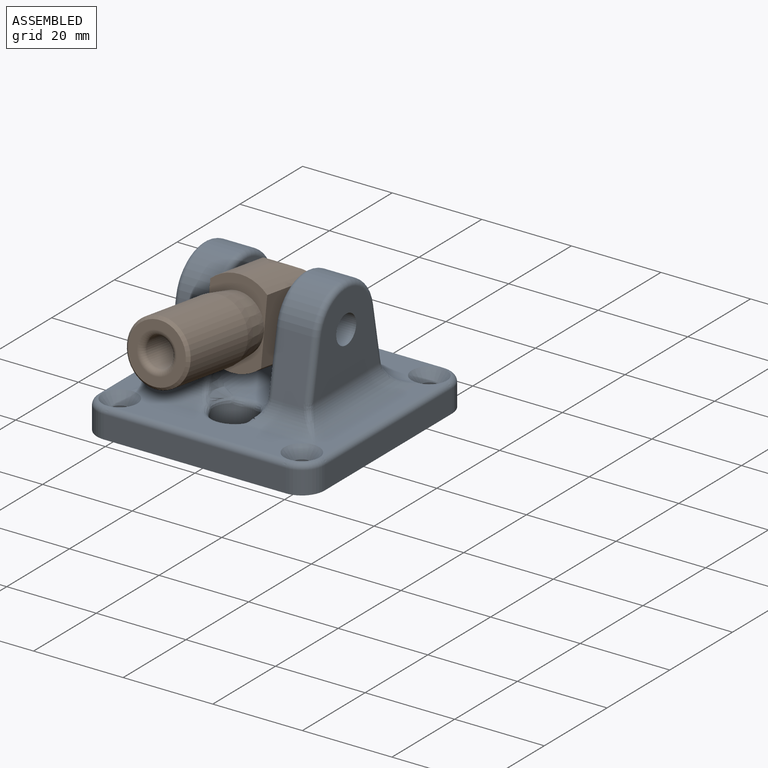
[diagram: assembled view]
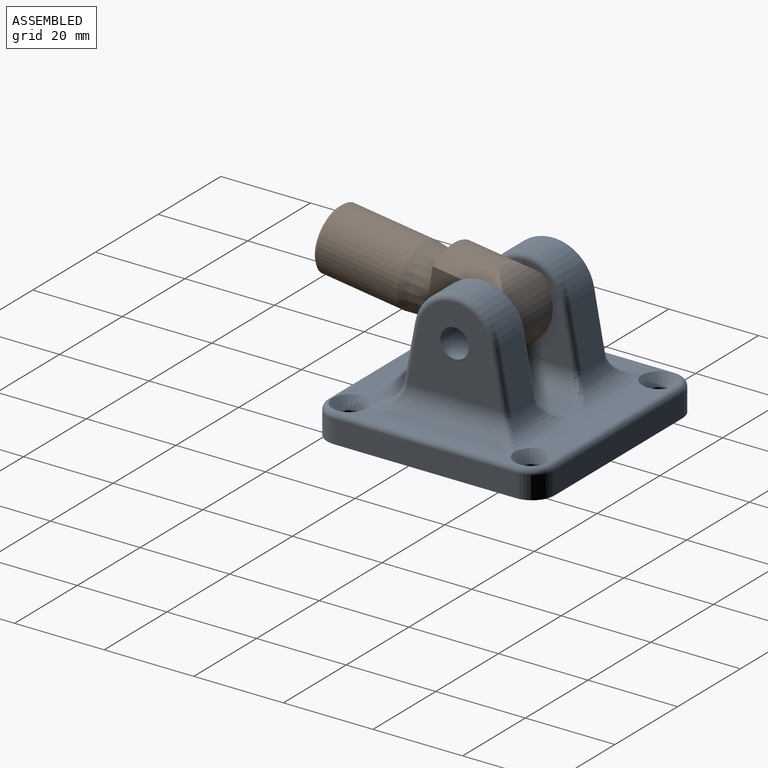
[diagram: assembled view, second angle]
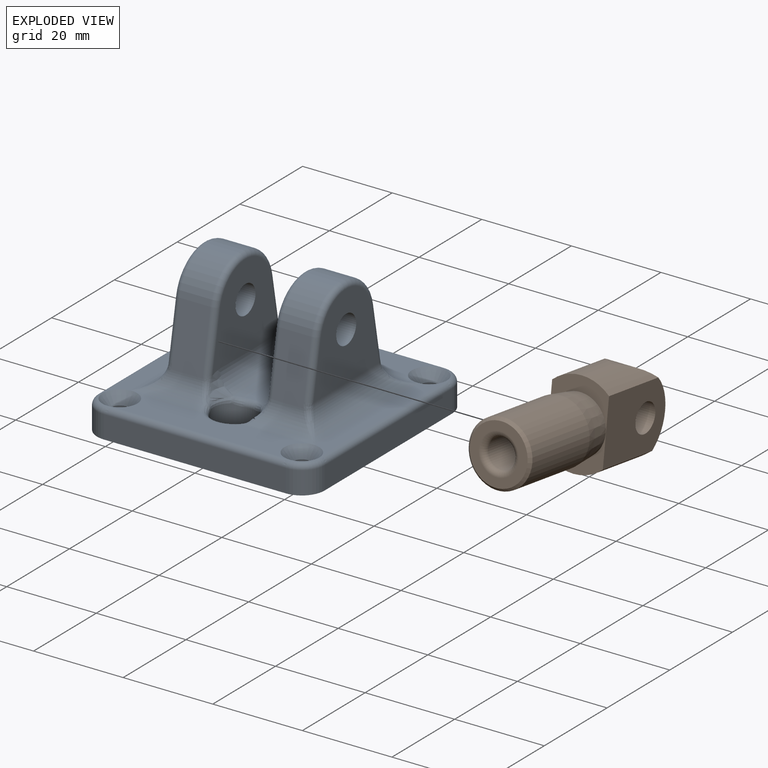
[diagram: exploded view]
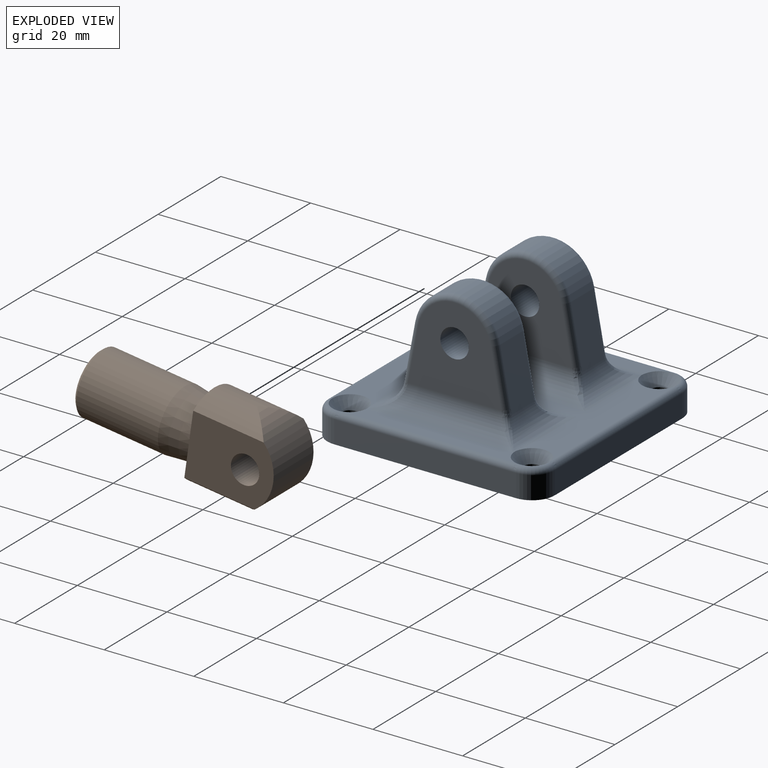
[diagram: exploded view, second angle]
ASSEMBLY  parts=2 mates=2
PART A: 100 faces, bbox 51.6x51.6x32.5 mm
  f0: plane 38.98x30.96mm, normal (0,0,1), area 313.1mm2, adj f23,f29,f30,f31,f35,f37,f45,f84
  f1: plane 38.98x3.05mm, normal (0,0,1), area 106mm2, adj f27,f29,f39,f79
  f2: plane 38.98x3.05mm, normal (0,0,1), area 106mm2, adj f23,f25,f33,f76
  f3: plane 20.89x19.05mm, normal (-1,0,0), area 279mm2, adj f14,f39,f88,f89,f90
  f4: plane 20.99x19.55mm, normal (1,0,0), area 279.4mm2, adj f14,f35,f36,f56,f57,f58
  f5: plane 20.99x19.55mm, normal (-1,0,0), area 279.4mm2, adj f13,f30,f32,f64,f65,f66
  f6: plane 20.89x19.05mm, normal (1,0,0), area 279mm2, adj f13,f33,f95,f96,f97
  f7: plane 38.98x7.22mm, normal (0,0,1), area 236.2mm2, adj f25,f27,f34,f38,f52,f71
  f8: plane 40.64x5.08mm, normal (0,1,0), area 206.5mm2, adj f12,f40,f43,f82,f84,f85
  f9: plane 40.64x5.08mm, normal (-1,0,0), area 206.5mm2, adj f12,f40,f41,f77,f79,f81
  f10: plane 40.64x5.08mm, normal (0,-1,0), area 206.5mm2, adj f12,f41,f42,f70,f71,f73
  f11: plane 40.64x5.08mm, normal (1,0,0), area 206.5mm2, adj f12,f42,f43,f74,f76,f78
  f12: plane 50.8x50.8mm, normal (0,0,-1), area 2441.9mm2, adj f8,f9,f10,f11,f21,f22,f24,f26
  f13: cylinder r=3.17mm len=9.53mm, axis (1,0,0), area 190mm2, adj f5,f6
  f14: cylinder r=3.17mm len=9.53mm, axis (1,0,0), area 190mm2, adj f3,f4
  f15: cylinder r=9.53mm len=18.72mm, axis (1,0,0), area 184.1mm2, adj f16,f19,f65,f96
  f16: plane 13.51x7.12mm, normal (0,-0.98,0.19), area 96.1mm2, adj f15,f34,f66,f67,f94,f95
  f17: plane 13.51x7.12mm, normal (0,-0.98,0.19), area 96.1mm2, adj f18,f38,f58,f59,f87,f88
  f18: cylinder r=9.53mm len=18.72mm, axis (1,0,0), area 184.1mm2, adj f17,f20,f57,f89
  f19: plane 13.51x7.21mm, normal (0,0.98,0.19), area 96.1mm2, adj f15,f31,f63,f64,f97,f98
  f20: plane 13.51x7.21mm, normal (0,0.98,0.19), area 96.1mm2, adj f18,f37,f55,f56,f90,f91
  f21: cylinder r=4.76mm len=9.53mm, axis (0,0,-1), area 161.1mm2, adj f12,f44,f45,f46,f47,f48,f49,f50
  f22: cylinder r=1.9mm len=4.05mm, axis (0,0,1), area 48.3mm2, adj f12,f23
  f23: cone r=1.9mm half-angle=41deg, axis (0,0,1), area 55.6mm2, adj f0,f2,f22,f31,f33,f78,f80,f82
  f24: cylinder r=1.9mm len=4.05mm, axis (0,0,1), area 48.3mm2, adj f12,f25
  f25: cone r=1.9mm half-angle=41deg, axis (0,0,1), area 55.6mm2, adj f2,f7,f24,f33,f34,f70,f72,f74
  f26: cylinder r=1.9mm len=4.05mm, axis (0,0,1), area 48.3mm2, adj f12,f27
  f27: cone r=1.9mm half-angle=41deg, axis (0,0,1), area 55.6mm2, adj f1,f7,f26,f38,f39,f73,f75,f77
  f28: cylinder r=1.9mm len=4.05mm, axis (0,0,1), area 48.3mm2, adj f12,f29
  f29: cone r=1.9mm half-angle=41deg, axis (0,0,1), area 55.6mm2, adj f0,f1,f28,f37,f39,f81,f83,f85
  f30: cylinder r=5.08mm len=25.06mm, axis (0,-1,0), area 166.3mm2, adj f0,f5,f32,f44,f62,f63
  f31: cylinder r=5.08mm len=19.05mm, axis (-1,0,0), area 93mm2, adj f0,f19,f23,f62,f99
  f32: bspline ~6.95x5.24mm, area 19mm2, adj f5,f30,f46,f48,f67,f68
  f33: cylinder r=5.08mm len=32.99mm, axis (0,1,0), area 205.1mm2, adj f2,f6,f23,f25,f93,f94,f98,f99
  f34: cylinder r=5.08mm len=16.13mm, axis (-1,0,0), area 81mm2, adj f7,f16,f25,f50,f68,f93
  f35: cylinder r=5.08mm len=25.06mm, axis (0,1,0), area 166.3mm2, adj f0,f4,f36,f47,f54,f55
  f36: bspline ~6.95x5.24mm, area 19mm2, adj f4,f35,f49,f51,f59,f60
  f37: cylinder r=5.08mm len=19.05mm, axis (-1,0,0), area 93mm2, adj f0,f20,f29,f54,f92
  f38: cylinder r=5.08mm len=16.13mm, axis (-1,0,0), area 81mm2, adj f7,f17,f27,f53,f60,f86
  f39: cylinder r=5.08mm len=32.99mm, axis (0,-1,0), area 205.1mm2, adj f1,f3,f27,f29,f86,f87,f91,f92
  f40: cylinder r=5.08mm len=5.08mm, axis (0,0,1), area 40.6mm2, adj f8,f9,f12,f83
  f41: cylinder r=5.08mm len=5.08mm, axis (0,0,-1), area 40.6mm2, adj f9,f10,f12,f75
  f42: cylinder r=5.08mm len=5.08mm, axis (0,0,1), area 40.6mm2, adj f10,f11,f12,f72
  f43: cylinder r=5.08mm len=5.08mm, axis (0,0,-1), area 40.6mm2, adj f8,f11,f12,f80
  f44: bspline ~3.47x2.72mm, area 4.2mm2, adj f21,f30,f45,f46
  f45: torus R=6.03mm, axis (0,0,1), area 4.9mm2, adj f0,f21,f44,f47
  f46: bspline ~1.18x0.99mm, area 36mm2, adj f21,f32,f44,f48
  f47: bspline ~3.47x2.72mm, area 4.2mm2, adj f21,f35,f45,f49
  f48: bspline ~6.1x2.09mm, area 5.5mm2, adj f21,f32,f46,f69
  f49: bspline ~1.18x0.99mm, area 0.2mm2, adj f21,f36,f47,f51
  f50: bspline ~4.45x3.41mm, area 5.7mm2, adj f21,f34,f52,f69
  f51: bspline ~6.1x2.09mm, area 5.5mm2, adj f21,f36,f49,f61
  f52: torus R=6.03mm, axis (0,0,1), area 16.6mm2, adj f7,f21,f50,f53
  f53: bspline ~4.45x3.41mm, area 5.7mm2, adj f21,f38,f52,f61
  f54: bspline ~6.34x6.34mm, area 5.9mm2, adj f35,f37,f55
  f55: bspline ~2.19x1.66mm, area 2.1mm2, adj f20,f35,f54,f56
  f56: cylinder r=1.27mm len=12.57mm, axis (0,-0.19,0.98), area 25mm2, adj f4,f20,f55,f57
  f57: torus R=8.26mm, axis (1,0,0), area 50mm2, adj f4,f18,f56,f58
  f58: cylinder r=1.27mm len=13.06mm, axis (0,-0.19,-0.98), area 26mm2, adj f4,f17,f57,f59
  f59: bspline ~2.79x1.84mm, area 1.3mm2, adj f17,f36,f58,f60
  f60: bspline ~4.91x4.54mm, area 7.8mm2, adj f36,f38,f59,f61
  f61: sphere r=1.27mm, area 0.5mm2, adj f51,f53,f60
  f62: bspline ~6.34x6.34mm, area 5.9mm2, adj f30,f31,f63
  f63: bspline ~2.19x1.66mm, area 2.1mm2, adj f19,f30,f62,f64
  f64: cylinder r=1.27mm len=12.57mm, axis (0,0.19,-0.98), area 25mm2, adj f5,f19,f63,f65
  f65: torus R=8.26mm, axis (1,0,0), area 50mm2, adj f5,f15,f64,f66
  f66: cylinder r=1.27mm len=13.06mm, axis (0,0.19,0.98), area 26mm2, adj f5,f16,f65,f67
  f67: bspline ~2.35x1.75mm, area 1.3mm2, adj f16,f32,f66,f68
  f68: bspline ~4.9x4.58mm, area 7.8mm2, adj f32,f34,f67,f69
  f69: sphere r=1.27mm, area 0.2mm2, adj f48,f50,f68
  f70: bspline ~1.71x1.36mm, area 1.6mm2, adj f10,f25,f71,f72
  f71: cylinder r=1.27mm len=38.98mm, axis (-1,0,0), area 77.8mm2, adj f7,f10,f70,f73
  f72: torus R=3.81mm, axis (0,0,1), area 13.9mm2, adj f25,f42,f70,f74
  f73: bspline ~1.71x1.36mm, area 1.6mm2, adj f10,f27,f71,f75
  f74: bspline ~1.71x1.36mm, area 1.6mm2, adj f11,f25,f72,f76
  f75: torus R=3.81mm, axis (0,0,1), area 13.9mm2, adj f27,f41,f73,f77
  f76: cylinder r=1.27mm len=38.98mm, axis (0,-1,0), area 77.8mm2, adj f2,f11,f74,f78
  f77: bspline ~1.71x1.36mm, area 1.6mm2, adj f9,f27,f75,f79
  f78: bspline ~1.71x1.36mm, area 1.6mm2, adj f11,f23,f76,f80
  f79: cylinder r=1.27mm len=38.98mm, axis (0,1,0), area 77.8mm2, adj f1,f9,f77,f81
  f80: torus R=3.81mm, axis (0,0,1), area 13.9mm2, adj f23,f43,f78,f82
  f81: bspline ~1.71x1.36mm, area 1.6mm2, adj f9,f29,f79,f83
  f82: bspline ~1.71x1.36mm, area 1.6mm2, adj f8,f23,f80,f84
  f83: torus R=3.81mm, axis (0,0,1), area 13.9mm2, adj f29,f40,f81,f85
  f84: cylinder r=1.27mm len=38.98mm, axis (1,0,0), area 77.8mm2, adj f0,f8,f82,f85
  f85: bspline ~1.71x1.36mm, area 1.6mm2, adj f8,f29,f83,f84
  f86: bspline ~6.34x6.34mm, area 9.6mm2, adj f27,f38,f39,f87
  f87: bspline ~1.47x1.36mm, area 2.1mm2, adj f17,f39,f86,f88
  f88: cylinder r=1.27mm len=12.57mm, axis (0,0.19,0.98), area 25mm2, adj f3,f17,f87,f89
  f89: torus R=8.26mm, axis (1,0,0), area 50mm2, adj f3,f18,f88,f90
  f90: cylinder r=1.27mm len=12.57mm, axis (0,0.19,-0.98), area 25mm2, adj f3,f20,f89,f91
  f91: bspline ~1.47x1.36mm, area 2.1mm2, adj f20,f39,f90,f92
  f92: bspline ~6.34x6.34mm, area 9.6mm2, adj f29,f37,f39,f91
  f93: bspline ~6.34x6.34mm, area 9.6mm2, adj f25,f33,f34,f94
  f94: bspline ~1.47x1.36mm, area 2.1mm2, adj f16,f33,f93,f95
  f95: cylinder r=1.27mm len=12.57mm, axis (0,-0.19,-0.98), area 25mm2, adj f6,f16,f94,f96
  f96: torus R=8.26mm, axis (1,0,0), area 50mm2, adj f6,f15,f95,f97
  f97: cylinder r=1.27mm len=12.57mm, axis (0,-0.19,0.98), area 25mm2, adj f6,f19,f96,f98
  f98: bspline ~1.47x1.36mm, area 2.1mm2, adj f19,f33,f97,f99
  f99: bspline ~6.34x6.34mm, area 9.6mm2, adj f23,f31,f33,f98
PART B: 16 faces, bbox 14.2x19.1x44.5 mm
  f0: cylinder r=9.53mm len=15.88mm, axis (0,0,1), area 104.2mm2, adj f2,f4,f5,f6,f14
  f1: cylinder r=9.53mm len=15.88mm, axis (0,0,1), area 176.5mm2, adj f2,f4,f5,f6
  f2: plane 19.05x12.7mm, normal (0,0,1), area 97.6mm2, adj f0,f1,f3,f4,f5
  f3: cone r=7.09mm half-angle=7deg, axis (0,0,1), area 269.2mm2, adj f2,f8
  f4: plane 19.05x14.2mm, normal (1,0,0), area 225mm2, adj f0,f1,f2,f6,f7
  f5: plane 19.05x14.2mm, normal (-1,0,0), area 225mm2, adj f0,f1,f2,f6,f7
  f6: cylinder r=9.53mm len=19mm, axis (1,0,0), area 291.5mm2, adj f0,f1,f4,f5,f14
  f7: cylinder r=3.17mm len=12.7mm, axis (1,0,0), area 253.4mm2, adj f4,f5
  f8: cylinder r=7.09mm len=18.42mm, axis (0,0,-1), area 820mm2, adj f3,f13
  f9: plane 12.9x12.9mm, normal (0,0,1), area 68.7mm2, adj f13,f15
  f10: cylinder r=3.17mm len=6.35mm, axis (0,-1,0), area 25.3mm2, adj f11,f14
  f11: torus R=6.35mm, axis (-1,0,0), area 199mm2, adj f10,f12
  f12: cylinder r=3.17mm len=24.13mm, axis (0,0,1), area 481.4mm2, adj f11,f15
  f13: cone r=6.45mm half-angle=45deg, axis (0,0,-1), area 38.2mm2, adj f8,f9
  f14: bspline ~10.25x8.88mm, area 57.1mm2, adj f0,f6,f10
  f15: torus R=4.45mm, axis (0,0,1), area 45.6mm2, adj f9,f12
PLACE A t=(0,25.4,-2.54)mm
PLACE B rot(axis=(0,0.66,-0.75),180deg) t=(0.13,12.82,21.46)mm
MATE cylindrical A.f13 <-> B.f7  axis (1,0,0) through (11.24,25.4,19.68)mm
MATE planar B.f6 <-> A.f5  axis (1,0,0) through (6.48,22.26,20.13)mm
